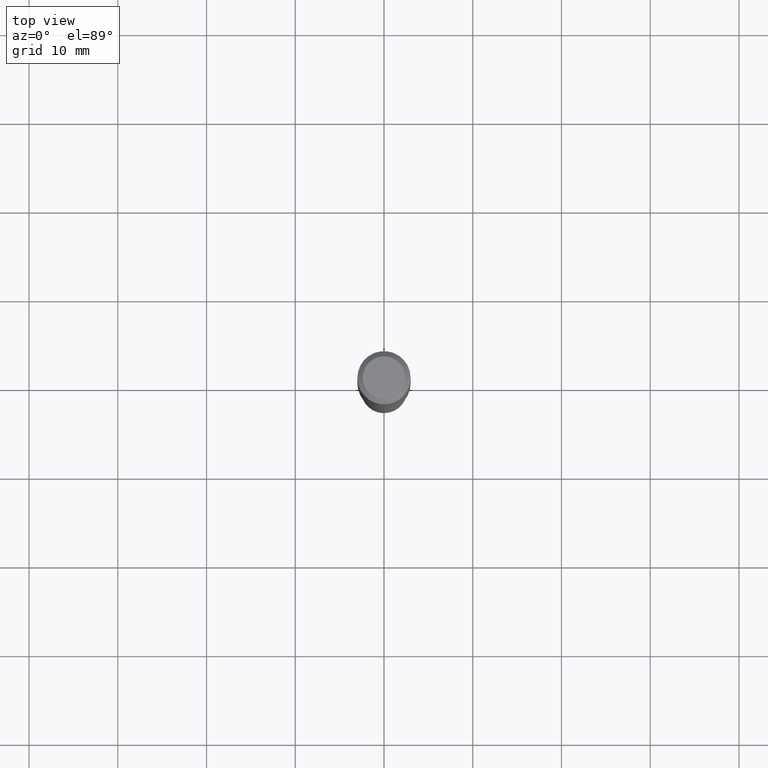
[diagram: clean part render]
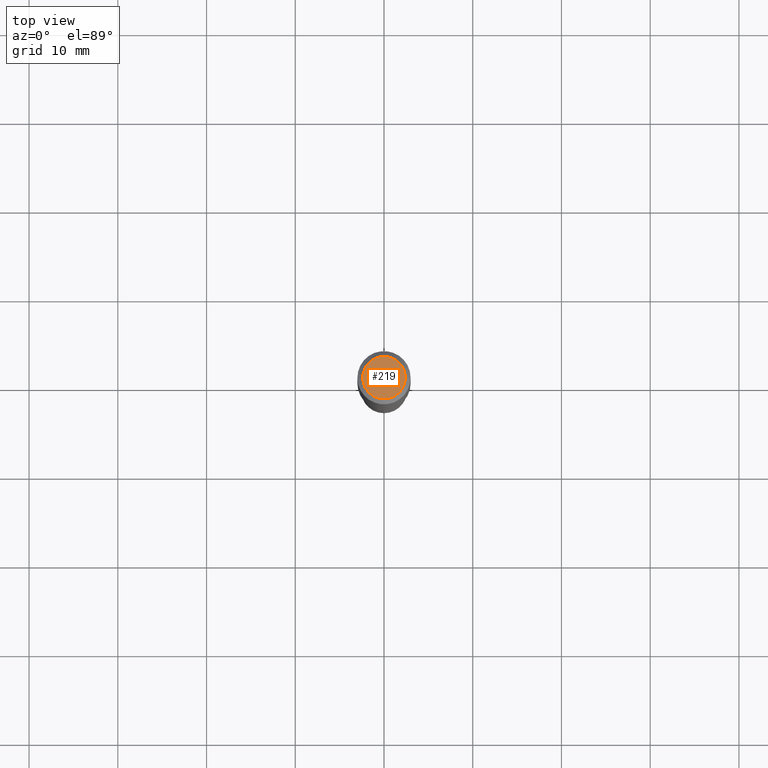
[diagram: same view with one face highlighted and labeled with its STEP entity id]
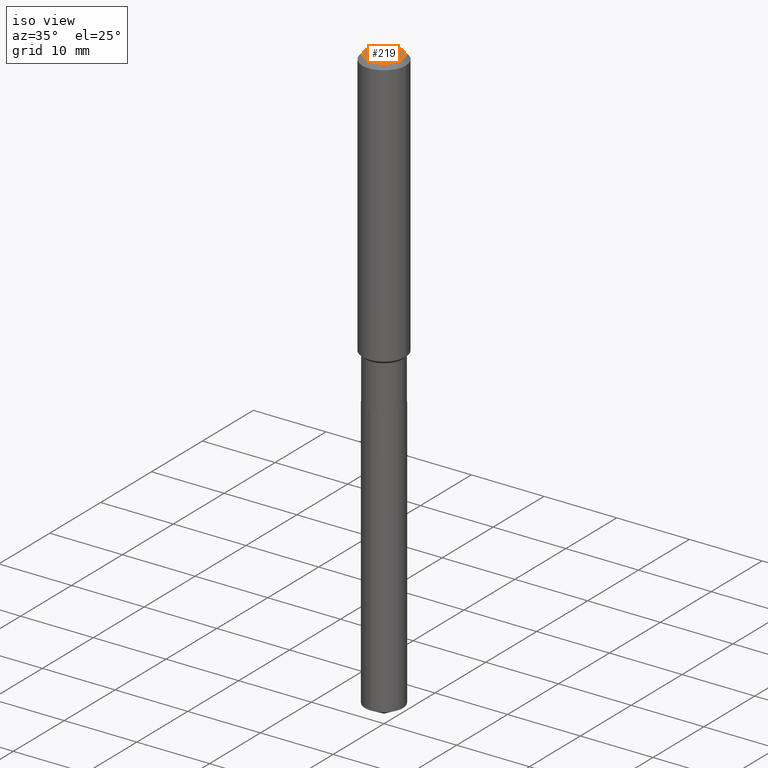
[diagram: same view with one face highlighted and labeled with its STEP entity id]
A machine part, top view. The second image highlights one B-rep face of the part: STEP entity #219.
A second angle (iso view) of the same face is appended — the face is thin or edge-on in the first view.
In plain terms, the highlighted planar face has unit normal (0, -0, -1).
Its self-contained STEP definition (entity closure, byte-faithful):
#4 = AXIS2_PLACEMENT_3D ( 'NONE', #91, #244, #282 ) ;
#41 = EDGE_CURVE ( 'NONE', #226, #409, #64, .T. ) ;
#44 = DIRECTION ( 'NONE',  ( -2.445468806185136597E-29, 3.491481338843145583E-15, 1.000000000000000000 ) ) ;
#64 = CIRCLE ( 'NONE', #212, 0.09447999999999998066 ) ;
#91 = CARTESIAN_POINT ( 'NONE',  ( 4.716267017698007905E-46, -6.733579360998555036E-32, -1.928573779297252010E-17 ) ) ;
#107 = CARTESIAN_POINT ( 'NONE',  ( 2.358133508849003952E-46, -3.366789680499277518E-32, -9.642868896486260050E-18 ) ) ;
#162 = CARTESIAN_POINT ( 'NONE',  ( 0.09447999999999998066, -7.704367267948738690E-16, -1.928573779296752193E-17 ) ) ;
#163 = EDGE_CURVE ( 'NONE', #409, #226, #284, .T. ) ;
#164 = CARTESIAN_POINT ( 'NONE',  ( 4.716267017698007905E-46, -6.733579360998555036E-32, -1.928573779297252010E-17 ) ) ;
#179 = EDGE_LOOP ( 'NONE', ( #336, #367 ) ) ;
#181 = FACE_OUTER_BOUND ( 'NONE', #179, .T. ) ;
#212 = AXIS2_PLACEMENT_3D ( 'NONE', #164, #44, #308 ) ;
#219 = ADVANCED_FACE ( 'NONE', ( #181 ), #470, .F. ) ;
#226 = VERTEX_POINT ( 'NONE', #478 ) ;
#244 = DIRECTION ( 'NONE',  ( -2.445468806185136597E-29, 3.491481338843145583E-15, 1.000000000000000000 ) ) ;
#253 = DIRECTION ( 'NONE',  ( -1.000000000000000000, 6.982962677686265922E-15, -4.876176775795935793E-29 ) ) ;
#282 = DIRECTION ( 'NONE',  ( 1.000000000000000000, -6.982962677686267499E-15, 4.875432709231658792E-29 ) ) ;
#284 = CIRCLE ( 'NONE', #4, 0.09447999999999998066 ) ;
#308 = DIRECTION ( 'NONE',  ( 1.000000000000000000, -6.982962677686267499E-15, 4.875432709231658792E-29 ) ) ;
#336 = ORIENTED_EDGE ( 'NONE', *, *, #41, .T. ) ;
#367 = ORIENTED_EDGE ( 'NONE', *, *, #163, .T. ) ;
#399 = DIRECTION ( 'NONE',  ( 2.438088387897960049E-29, -3.491481338843145188E-15, -1.000000000000000000 ) ) ;
#409 = VERTEX_POINT ( 'NONE', #162 ) ;
#463 = AXIS2_PLACEMENT_3D ( 'NONE', #107, #399, #253 ) ;
#470 = PLANE ( 'NONE',  #463 ) ;
#478 = CARTESIAN_POINT ( 'NONE',  ( -0.09447999999999998066, 7.009847083995354710E-16, -1.928573779297727792E-17 ) ) ;